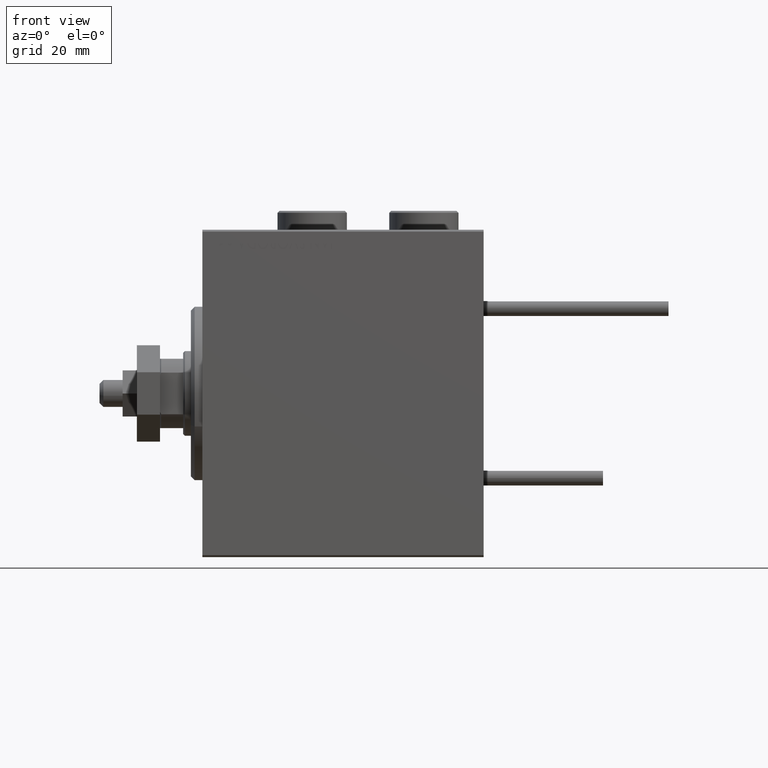
[diagram: clean part render]
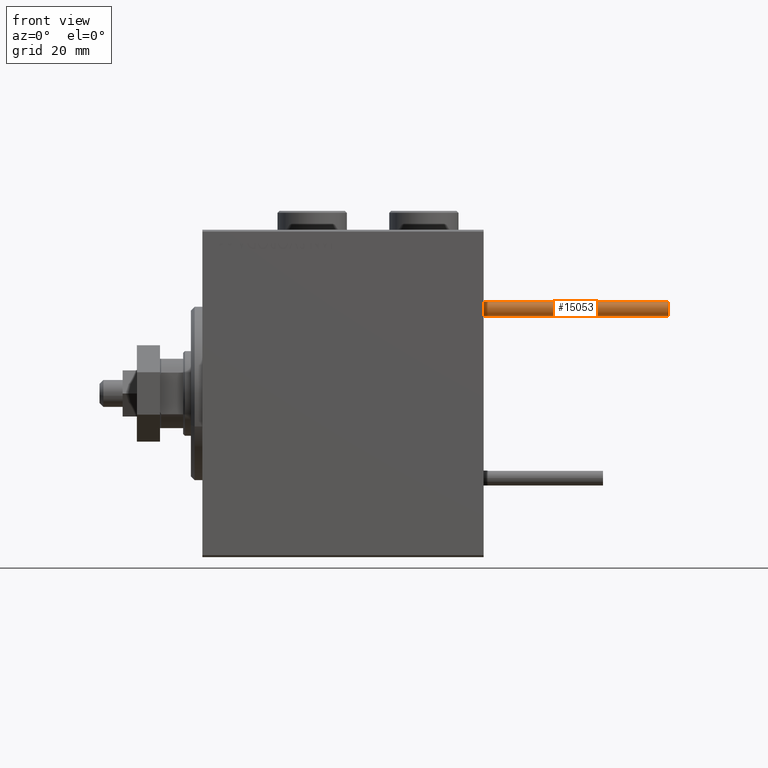
[diagram: same view with one face highlighted and labeled with its STEP entity id]
A machine part, front view. The second image highlights one B-rep face of the part: STEP entity #15053.
In plain terms, the highlighted cylindrical surface (edge-blend (fillet) strip) has radius 1.9 mm, axis along (-1, -0, 0).
Its self-contained STEP definition (entity closure, byte-faithful):
#1476 = CARTESIAN_POINT ( 'NONE',  ( 0.000000000000000000, 0.000000000000000000, 0.000000000000000000 ) ) ;
#1717 = CARTESIAN_POINT ( 'NONE',  ( 1.899999999999999467, 2.326828918379970872E-16, 48.00000000000000000 ) ) ;
#2140 = AXIS2_PLACEMENT_3D ( 'NONE', #8592, #44414, #24442 ) ;
#2908 = ORIENTED_EDGE ( 'NONE', *, *, #50233, .F. ) ;
#4671 = ORIENTED_EDGE ( 'NONE', *, *, #49829, .F. ) ;
#5995 = DIRECTION ( 'NONE',  ( 1.000000000000000000, 0.000000000000000000, 0.000000000000000000 ) ) ;
#8592 = CARTESIAN_POINT ( 'NONE',  ( 0.000000000000000000, 0.000000000000000000, 48.00000000000000000 ) ) ;
#8944 = AXIS2_PLACEMENT_3D ( 'NONE', #1476, #40699, #40187 ) ;
#9625 = CARTESIAN_POINT ( 'NONE',  ( 0.000000000000000000, 0.000000000000000000, 48.00000000000000000 ) ) ;
#10102 = DIRECTION ( 'NONE',  ( -0.000000000000000000, -0.000000000000000000, -1.000000000000000000 ) ) ;
#13897 = VERTEX_POINT ( 'NONE', #43707 ) ;
#14465 = VERTEX_POINT ( 'NONE', #50342 ) ;
#15053 = ADVANCED_FACE ( 'NONE', ( #28348 ), #36881, .T. ) ;
#15431 = ORIENTED_EDGE ( 'NONE', *, *, #51167, .T. ) ;
#17571 = DIRECTION ( 'NONE',  ( -0.000000000000000000, -0.000000000000000000, -1.000000000000000000 ) ) ;
#17930 = AXIS2_PLACEMENT_3D ( 'NONE', #9625, #45704, #5995 ) ;
#21335 = EDGE_CURVE ( 'NONE', #50104, #13897, #45412, .T. ) ;
#22909 = CIRCLE ( 'NONE', #17930, 1.899999999999999467 ) ;
#24442 = DIRECTION ( 'NONE',  ( -1.000000000000000000, 0.000000000000000000, 0.000000000000000000 ) ) ;
#25365 = LINE ( 'NONE', #1717, #28693 ) ;
#27387 = VERTEX_POINT ( 'NONE', #35725 ) ;
#28348 = FACE_OUTER_BOUND ( 'NONE', #40262, .T. ) ;
#28693 = VECTOR ( 'NONE', #17571, 1000.000000000000000 ) ;
#35725 = CARTESIAN_POINT ( 'NONE',  ( 1.899999999999999467, 2.326828918379970872E-16, 48.00000000000000000 ) ) ;
#36881 = CYLINDRICAL_SURFACE ( 'NONE', #2140, 1.899999999999999467 ) ;
#40187 = DIRECTION ( 'NONE',  ( 1.000000000000000000, 0.000000000000000000, 0.000000000000000000 ) ) ;
#40262 = EDGE_LOOP ( 'NONE', ( #2908, #4671, #15431, #48700 ) ) ;
#40699 = DIRECTION ( 'NONE',  ( 0.000000000000000000, 0.000000000000000000, 1.000000000000000000 ) ) ;
#41521 = LINE ( 'NONE', #45670, #45310 ) ;
#43707 = CARTESIAN_POINT ( 'NONE',  ( 1.899999999999999467, 2.326828918379970872E-16, 0.000000000000000000 ) ) ;
#44414 = DIRECTION ( 'NONE',  ( -0.000000000000000000, -0.000000000000000000, -1.000000000000000000 ) ) ;
#45310 = VECTOR ( 'NONE', #10102, 1000.000000000000000 ) ;
#45412 = CIRCLE ( 'NONE', #8944, 1.899999999999999467 ) ;
#45670 = CARTESIAN_POINT ( 'NONE',  ( -1.899999999999999467, 0.000000000000000000, 48.00000000000000000 ) ) ;
#45704 = DIRECTION ( 'NONE',  ( 0.000000000000000000, 0.000000000000000000, 1.000000000000000000 ) ) ;
#48483 = CARTESIAN_POINT ( 'NONE',  ( -1.899999999999999467, 0.000000000000000000, 0.000000000000000000 ) ) ;
#48700 = ORIENTED_EDGE ( 'NONE', *, *, #21335, .T. ) ;
#49829 = EDGE_CURVE ( 'NONE', #14465, #27387, #22909, .T. ) ;
#50104 = VERTEX_POINT ( 'NONE', #48483 ) ;
#50233 = EDGE_CURVE ( 'NONE', #27387, #13897, #25365, .T. ) ;
#50342 = CARTESIAN_POINT ( 'NONE',  ( -1.899999999999999467, 0.000000000000000000, 48.00000000000000000 ) ) ;
#51167 = EDGE_CURVE ( 'NONE', #14465, #50104, #41521, .T. ) ;